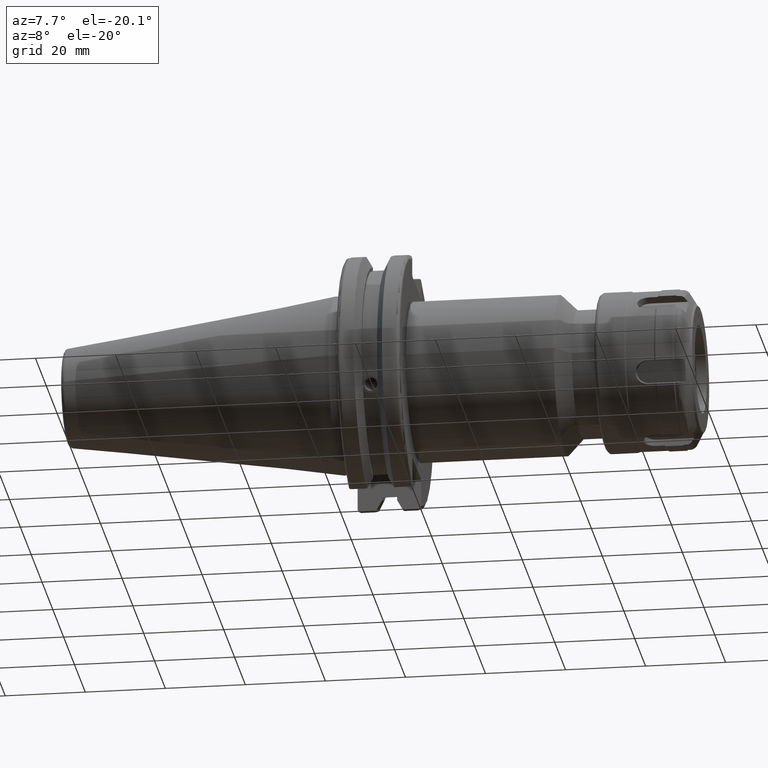
[diagram: clean part render]
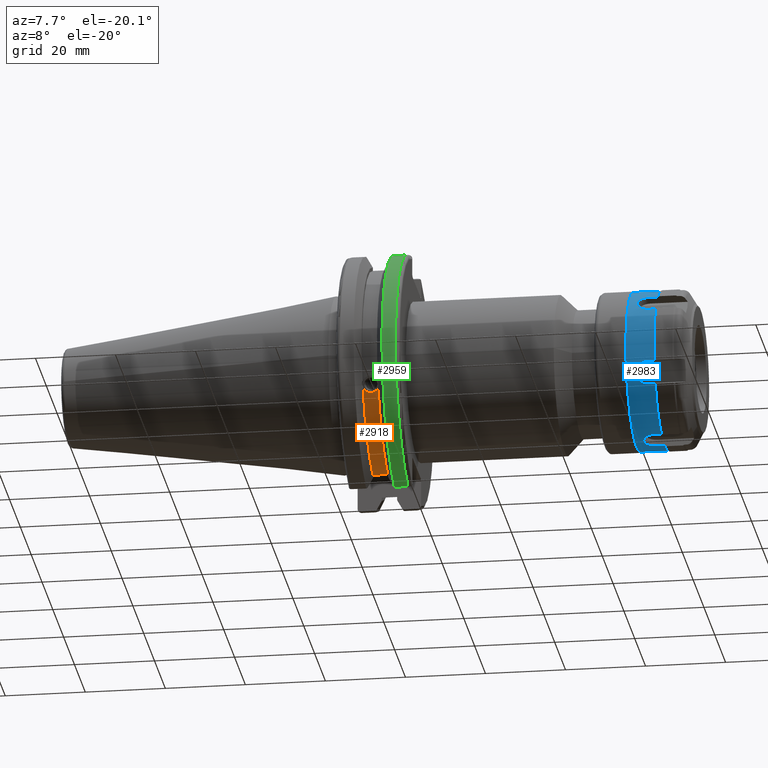
[diagram: same view with three faces highlighted in distinct colors, each labeled with its STEP entity id]
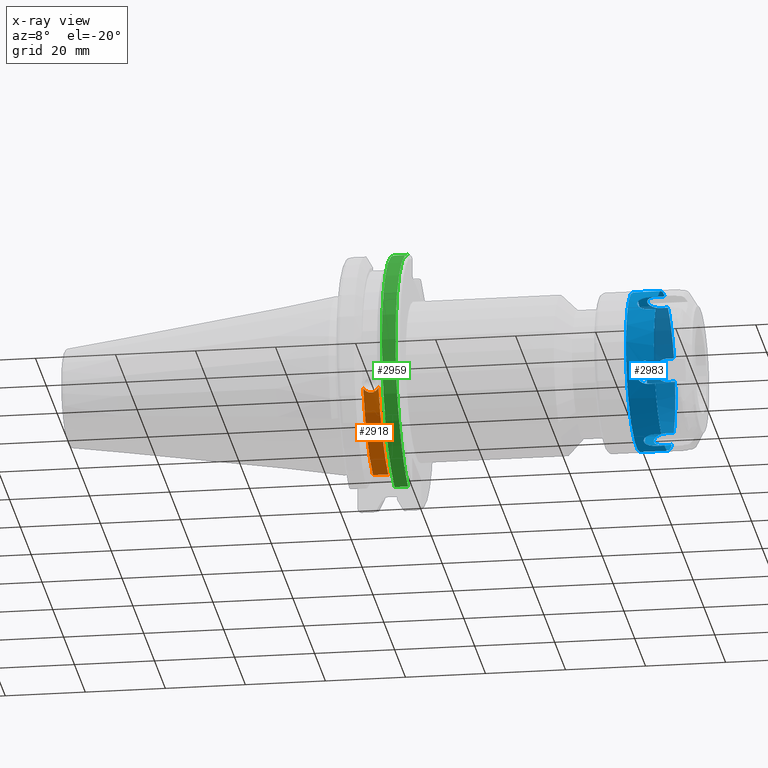
[diagram: x-ray of the same camera — body ghosted, the three highlighted faces saturated]
A machine part, auxiliary view with three faces highlighted in distinct colors.
The next image is the same camera in x-ray (body ghosted, the three faces saturated) — at least one of them is partly hidden behind the body in this view.
Their STEP definitions:

[orange] entity #2918 — the highlighted cylindrical surface (partial cylindrical patch) has radius 28.15 mm, axis along (1, 0, 0).
#396=B_SPLINE_CURVE_WITH_KNOTS('',3,(#4585,#4586,#4587,#4588,#4589,#4590,
#4591,#4592,#4593,#4594,#4595,#4596,#4597,#4598,#4599),.UNSPECIFIED.,.F.,
 .F.,(4,2,2,3,2,2,4),(-0.231446873660085,-0.158271583089134,-0.079135791544567,
0.,0.0791357915445672,0.158271583089134,0.231446873660466),
 .UNSPECIFIED.);
#449=CYLINDRICAL_SURFACE('',#3208,28.15);
#507=FACE_OUTER_BOUND('',#668,.T.);
#668=EDGE_LOOP('',(#2132,#2133,#2134,#2135));
#835=LINE('',#4658,#1025);
#1025=VECTOR('',#3637,10.);
#1215=CIRCLE('',#3207,28.15);
#1216=CIRCLE('',#3209,28.15);
#1358=VERTEX_POINT('',#4582);
#1359=VERTEX_POINT('',#4584);
#1372=VERTEX_POINT('',#4652);
#1373=VERTEX_POINT('',#4656);
#1647=EDGE_CURVE('',#1359,#1358,#396,.T.);
#1665=EDGE_CURVE('',#1359,#1372,#1215,.T.);
#1667=EDGE_CURVE('',#1358,#1373,#1216,.T.);
#1668=EDGE_CURVE('',#1373,#1372,#835,.T.);
#2132=ORIENTED_EDGE('',*,*,#1647,.T.);
#2133=ORIENTED_EDGE('',*,*,#1667,.T.);
#2134=ORIENTED_EDGE('',*,*,#1668,.T.);
#2135=ORIENTED_EDGE('',*,*,#1665,.F.);
#2918=ADVANCED_FACE('',(#507),#449,.T.);
#3207=AXIS2_PLACEMENT_3D('',#4653,#3630,#3631);
#3208=AXIS2_PLACEMENT_3D('',#4655,#3633,#3634);
#3209=AXIS2_PLACEMENT_3D('',#4657,#3635,#3636);
#3630=DIRECTION('center_axis',(1.,0.,0.));
#3631=DIRECTION('ref_axis',(0.,0.,-1.));
#3633=DIRECTION('center_axis',(1.,0.,0.));
#3634=DIRECTION('ref_axis',(0.,1.,0.));
#3635=DIRECTION('center_axis',(1.,0.,0.));
#3636=DIRECTION('ref_axis',(0.,0.,-1.));
#3637=DIRECTION('',(1.,0.,0.));
#4582=CARTESIAN_POINT('',(9.212,-26.1451788594704,-10.4332220529567));
#4584=CARTESIAN_POINT('',(13.042,-26.1451788594704,-10.4332220529567));
#4585=CARTESIAN_POINT('Ctrl Pts',(13.042,-26.1451788594704,-10.4332220529567));
#4586=CARTESIAN_POINT('Ctrl Pts',(12.9357694290343,-26.0576536126147,-10.6525563316815));
#4587=CARTESIAN_POINT('Ctrl Pts',(12.784279862294,-25.9751489313128,-10.8509873904882));
#4588=CARTESIAN_POINT('Ctrl Pts',(12.4255293734259,-25.8346412777187,-11.1816210830117));
#4589=CARTESIAN_POINT('Ctrl Pts',(12.1894549887012,-25.7695111693635,-11.3298867884858));
#4590=CARTESIAN_POINT('Ctrl Pts',(11.6720874573612,-25.6822868299377,-11.5262389251846));
#4591=CARTESIAN_POINT('Ctrl Pts',(11.3907859718152,-25.6603958057616,-11.5743935949859));
#4592=CARTESIAN_POINT('Ctrl Pts',(11.127,-25.6603958057616,-11.5743935949859));
#4593=CARTESIAN_POINT('Ctrl Pts',(10.8632140281848,-25.6603958057616,-11.5743935949859));
#4594=CARTESIAN_POINT('Ctrl Pts',(10.5819125426388,-25.6822868299377,-11.5262389251846));
#4595=CARTESIAN_POINT('Ctrl Pts',(10.0645450112988,-25.7695111693635,-11.3298867884858));
#4596=CARTESIAN_POINT('Ctrl Pts',(9.8284706265741,-25.8346412777187,-11.1816210830117));
#4597=CARTESIAN_POINT('Ctrl Pts',(9.46972013770509,-25.9751489313131,-10.8509873904873));
#4598=CARTESIAN_POINT('Ctrl Pts',(9.31823057097183,-26.0576536126096,-10.6525563316942));
#4599=CARTESIAN_POINT('Ctrl Pts',(9.212,-26.1451788594704,-10.4332220529567));
#4652=CARTESIAN_POINT('',(13.042,-8.19,-26.932255754021));
#4653=CARTESIAN_POINT('Origin',(13.042,0.,0.));
#4655=CARTESIAN_POINT('Origin',(11.127,0.,0.));
#4656=CARTESIAN_POINT('',(9.212,-8.19,-26.932255754021));
#4657=CARTESIAN_POINT('Origin',(9.212,0.,0.));
#4658=CARTESIAN_POINT('',(11.127,-8.19,-26.932255754021));

[blue] entity #2983 — the highlighted cylindrical surface (bore or boss wall) has radius 19.8 mm, axis along (-1, 0, 0).
#431=B_SPLINE_CURVE_WITH_KNOTS('',3,(#5446,#5447,#5448,#5449,#5450,#5451,
#5452,#5453,#5454,#5455),.UNSPECIFIED.,.F.,.F.,(4,2,2,2,4),(0.438672255739738,
0.548420928480743,0.658169601221749,0.767757056350612,0.877344511479476),
 .UNSPECIFIED.);
#432=B_SPLINE_CURVE_WITH_KNOTS('',3,(#5463,#5464,#5465,#5466,#5467,#5468,
#5469,#5470,#5471,#5472,#5473,#5474,#5475,#5476,#5477,#5478,#5479,#5480),
 .UNSPECIFIED.,.F.,.F.,(4,2,2,2,2,2,2,2,4),(-2.46420310850344E-8,0.109587439001204,
0.21917490264444,0.328923583912342,0.438672265180244,0.548420946448147,
0.658169627716049,0.767757091359283,0.877344555002517),.UNSPECIFIED.);
#433=B_SPLINE_CURVE_WITH_KNOTS('',3,(#5488,#5489,#5490,#5491,#5492,#5493,
#5494,#5495,#5496,#5497,#5498,#5499,#5500,#5501,#5502,#5503,#5504,#5505),
 .UNSPECIFIED.,.F.,.F.,(4,2,2,2,2,2,2,2,4),(-2.46420308630507E-8,0.109587439001203,
0.219174902644436,0.328923583912339,0.438672265180242,0.548420946448144,
0.658169627716046,0.767757091359282,0.877344555002517),.UNSPECIFIED.);
#434=B_SPLINE_CURVE_WITH_KNOTS('',3,(#5513,#5514,#5515,#5516,#5517,#5518,
#5519,#5520,#5521,#5522,#5523,#5524,#5525,#5526,#5527,#5528,#5529,#5530),
 .UNSPECIFIED.,.F.,.F.,(4,2,2,2,2,2,2,2,4),(-0.877344538842361,-0.767757078464627,
-0.658169618086892,-0.548420940089294,-0.438672262091695,-0.328923584094097,
-0.219174906096499,-0.109587445718764,1.46589702598732E-8),
 .UNSPECIFIED.);
#435=B_SPLINE_CURVE_WITH_KNOTS('',3,(#5538,#5539,#5540,#5541,#5542,#5543,
#5544,#5545,#5546,#5547,#5548,#5549,#5550,#5551,#5552,#5553,#5554,#5555),
 .UNSPECIFIED.,.F.,.F.,(4,2,2,2,2,2,2,2,4),(-2.46420304189006E-8,0.109587439001205,
0.21917490264444,0.328923583912343,0.438672265180245,0.548420946448148,
0.65816962771605,0.767757091359284,0.877344555002518),.UNSPECIFIED.);
#436=B_SPLINE_CURVE_WITH_KNOTS('',3,(#5562,#5563,#5564,#5565,#5566,#5567,
#5568,#5569,#5570,#5571,#5572,#5573,#5574,#5575,#5576,#5577,#5578,#5579),
 .UNSPECIFIED.,.F.,.F.,(4,2,2,2,2,2,2,2,4),(-2.46420301969169E-8,0.109587439001203,
0.219174902644437,0.32892358391234,0.438672265180242,0.548420946448145,
0.658169627716047,0.767757091359282,0.877344555002518),.UNSPECIFIED.);
#437=B_SPLINE_CURVE_WITH_KNOTS('',3,(#5584,#5585,#5586,#5587,#5588,#5589,
#5590,#5591,#5592,#5593),.UNSPECIFIED.,.F.,.F.,(4,2,2,2,4),(0.,0.109587455128863,
0.219174910257727,0.328923582998732,0.438672255739738),.UNSPECIFIED.);
#466=CYLINDRICAL_SURFACE('',#3350,19.8);
#572=FACE_OUTER_BOUND('',#742,.T.);
#742=EDGE_LOOP('',(#2510,#2511,#2512,#2513,#2514,#2515,#2516,#2517,#2518,
#2519,#2520,#2521,#2522,#2523,#2524,#2525,#2526,#2527,#2528,#2529,#2530,
#2531,#2532,#2533,#2534,#2535,#2536,#2537));
#911=LINE('',#5427,#1101);
#918=LINE('',#5444,#1108);
#919=LINE('',#5457,#1109);
#920=LINE('',#5461,#1110);
#921=LINE('',#5482,#1111);
#922=LINE('',#5486,#1112);
#923=LINE('',#5507,#1113);
#924=LINE('',#5511,#1114);
#925=LINE('',#5532,#1115);
#926=LINE('',#5536,#1116);
#927=LINE('',#5557,#1117);
#928=LINE('',#5561,#1118);
#929=LINE('',#5583,#1119);
#1101=VECTOR('',#3991,1.849999564767);
#1108=VECTOR('',#4004,19.8);
#1109=VECTOR('',#4005,1.849999999999);
#1110=VECTOR('',#4008,1.849999753578);
#1111=VECTOR('',#4009,1.849999564767);
#1112=VECTOR('',#4012,1.849999753578);
#1113=VECTOR('',#4013,1.849999564767);
#1114=VECTOR('',#4016,1.84999985341);
#1115=VECTOR('',#4017,1.849999726372);
#1116=VECTOR('',#4020,1.849999753578);
#1117=VECTOR('',#4021,1.849999564767);
#1118=VECTOR('',#4024,1.849999753578);
#1119=VECTOR('',#4027,1.849999999999);
#1274=CIRCLE('',#3351,19.8);
#1275=CIRCLE('',#3352,19.8);
#1276=CIRCLE('',#3353,19.8);
#1277=CIRCLE('',#3354,19.8);
#1278=CIRCLE('',#3355,19.8);
#1279=CIRCLE('',#3356,19.8);
#1280=CIRCLE('',#3357,19.8);
#1502=VERTEX_POINT('',#5425);
#1503=VERTEX_POINT('',#5426);
#1509=VERTEX_POINT('',#5441);
#1510=VERTEX_POINT('',#5443);
#1511=VERTEX_POINT('',#5445);
#1512=VERTEX_POINT('',#5456);
#1513=VERTEX_POINT('',#5458);
#1514=VERTEX_POINT('',#5460);
#1515=VERTEX_POINT('',#5462);
#1516=VERTEX_POINT('',#5481);
#1517=VERTEX_POINT('',#5483);
#1518=VERTEX_POINT('',#5485);
#1519=VERTEX_POINT('',#5487);
#1520=VERTEX_POINT('',#5506);
#1521=VERTEX_POINT('',#5508);
#1522=VERTEX_POINT('',#5510);
#1523=VERTEX_POINT('',#5512);
#1524=VERTEX_POINT('',#5531);
#1525=VERTEX_POINT('',#5533);
#1526=VERTEX_POINT('',#5535);
#1527=VERTEX_POINT('',#5537);
#1528=VERTEX_POINT('',#5556);
#1529=VERTEX_POINT('',#5558);
#1530=VERTEX_POINT('',#5560);
#1531=VERTEX_POINT('',#5580);
#1532=VERTEX_POINT('',#5582);
#1856=EDGE_CURVE('',#1502,#1503,#911,.T.);
#1864=EDGE_CURVE('',#1509,#1509,#1274,.T.);
#1865=EDGE_CURVE('',#1509,#1510,#918,.T.);
#1866=EDGE_CURVE('',#1510,#1511,#431,.T.);
#1867=EDGE_CURVE('',#1512,#1511,#919,.T.);
#1868=EDGE_CURVE('',#1512,#1513,#1275,.T.);
#1869=EDGE_CURVE('',#1513,#1514,#920,.T.);
#1870=EDGE_CURVE('',#1514,#1515,#432,.T.);
#1871=EDGE_CURVE('',#1516,#1515,#921,.T.);
#1872=EDGE_CURVE('',#1516,#1517,#1276,.T.);
#1873=EDGE_CURVE('',#1517,#1518,#922,.T.);
#1874=EDGE_CURVE('',#1518,#1519,#433,.T.);
#1875=EDGE_CURVE('',#1520,#1519,#923,.T.);
#1876=EDGE_CURVE('',#1520,#1521,#1277,.T.);
#1877=EDGE_CURVE('',#1521,#1522,#924,.T.);
#1878=EDGE_CURVE('',#1522,#1523,#434,.F.);
#1879=EDGE_CURVE('',#1524,#1523,#925,.T.);
#1880=EDGE_CURVE('',#1525,#1524,#1278,.T.);
#1881=EDGE_CURVE('',#1525,#1526,#926,.T.);
#1882=EDGE_CURVE('',#1526,#1527,#435,.T.);
#1883=EDGE_CURVE('',#1528,#1527,#927,.T.);
#1884=EDGE_CURVE('',#1529,#1528,#1279,.T.);
#1885=EDGE_CURVE('',#1529,#1530,#928,.T.);
#1886=EDGE_CURVE('',#1530,#1503,#436,.T.);
#1887=EDGE_CURVE('',#1531,#1502,#1280,.T.);
#1888=EDGE_CURVE('',#1531,#1532,#929,.T.);
#1889=EDGE_CURVE('',#1532,#1510,#437,.T.);
#2510=ORIENTED_EDGE('',*,*,#1864,.T.);
#2511=ORIENTED_EDGE('',*,*,#1865,.T.);
#2512=ORIENTED_EDGE('',*,*,#1866,.T.);
#2513=ORIENTED_EDGE('',*,*,#1867,.F.);
#2514=ORIENTED_EDGE('',*,*,#1868,.T.);
#2515=ORIENTED_EDGE('',*,*,#1869,.T.);
#2516=ORIENTED_EDGE('',*,*,#1870,.T.);
#2517=ORIENTED_EDGE('',*,*,#1871,.F.);
#2518=ORIENTED_EDGE('',*,*,#1872,.T.);
#2519=ORIENTED_EDGE('',*,*,#1873,.T.);
#2520=ORIENTED_EDGE('',*,*,#1874,.T.);
#2521=ORIENTED_EDGE('',*,*,#1875,.F.);
#2522=ORIENTED_EDGE('',*,*,#1876,.T.);
#2523=ORIENTED_EDGE('',*,*,#1877,.T.);
#2524=ORIENTED_EDGE('',*,*,#1878,.T.);
#2525=ORIENTED_EDGE('',*,*,#1879,.F.);
#2526=ORIENTED_EDGE('',*,*,#1880,.F.);
#2527=ORIENTED_EDGE('',*,*,#1881,.T.);
#2528=ORIENTED_EDGE('',*,*,#1882,.T.);
#2529=ORIENTED_EDGE('',*,*,#1883,.F.);
#2530=ORIENTED_EDGE('',*,*,#1884,.F.);
#2531=ORIENTED_EDGE('',*,*,#1885,.T.);
#2532=ORIENTED_EDGE('',*,*,#1886,.T.);
#2533=ORIENTED_EDGE('',*,*,#1856,.F.);
#2534=ORIENTED_EDGE('',*,*,#1887,.F.);
#2535=ORIENTED_EDGE('',*,*,#1888,.T.);
#2536=ORIENTED_EDGE('',*,*,#1889,.T.);
#2537=ORIENTED_EDGE('',*,*,#1865,.F.);
#2983=ADVANCED_FACE('',(#572),#466,.T.);
#3350=AXIS2_PLACEMENT_3D('',#5440,#4000,#4001);
#3351=AXIS2_PLACEMENT_3D('',#5442,#4002,#4003);
#3352=AXIS2_PLACEMENT_3D('',#5459,#4006,#4007);
#3353=AXIS2_PLACEMENT_3D('',#5484,#4010,#4011);
#3354=AXIS2_PLACEMENT_3D('',#5509,#4014,#4015);
#3355=AXIS2_PLACEMENT_3D('',#5534,#4018,#4019);
#3356=AXIS2_PLACEMENT_3D('',#5559,#4022,#4023);
#3357=AXIS2_PLACEMENT_3D('',#5581,#4025,#4026);
#3991=DIRECTION('',(1.,2.196665468829E-9,-3.137164059966E-9));
#4000=DIRECTION('center_axis',(1.,0.,0.));
#4001=DIRECTION('ref_axis',(0.,-1.,0.));
#4002=DIRECTION('center_axis',(-1.,0.,0.));
#4003=DIRECTION('ref_axis',(0.,1.,0.));
#4004=DIRECTION('',(-1.,0.,0.));
#4005=DIRECTION('',(1.,0.,0.));
#4006=DIRECTION('center_axis',(1.,0.,0.));
#4007=DIRECTION('ref_axis',(0.,0.989234003049567,0.146342363007195));
#4008=DIRECTION('',(1.,1.24368616069E-9,1.776170798568E-9));
#4009=DIRECTION('',(1.,1.618530795576E-9,3.470950230352E-9));
#4010=DIRECTION('center_axis',(1.,0.,0.));
#4011=DIRECTION('ref_axis',(0.,0.3678807975107,0.929872958431899));
#4012=DIRECTION('',(1.,-9.163640437412E-10,1.965148306052E-9));
#4013=DIRECTION('',(1.,-2.196667389215E-9,3.137163099773E-9));
#4014=DIRECTION('center_axis',(1.,0.,0.));
#4015=DIRECTION('ref_axis',(0.,-0.621353205538823,0.783530595424729));
#4016=DIRECTION('',(1.,-1.20135694703E-9,1.051048820816E-10));
#4017=DIRECTION('',(1.,-2.253960955125E-9,-1.971965225354E-10));
#4018=DIRECTION('center_axis',(-1.,0.,0.));
#4019=DIRECTION('ref_axis',(0.,-0.621353205538823,-0.783530595424729));
#4020=DIRECTION('',(1.,-1.243683280111E-9,-1.776167917989E-9));
#4021=DIRECTION('',(1.,-1.618529355286E-9,-3.470952150738E-9));
#4022=DIRECTION('center_axis',(-1.,0.,0.));
#4023=DIRECTION('ref_axis',(0.,0.3678807975107,-0.929872958431899));
#4024=DIRECTION('',(1.,9.163626034516E-10,-1.965146385665E-9));
#4025=DIRECTION('center_axis',(-1.,0.,0.));
#4026=DIRECTION('ref_axis',(0.,0.989234003049567,-0.146342363007195));
#4027=DIRECTION('',(1.,0.,0.));
#5425=CARTESIAN_POINT('',(9.000000000001,12.30279346967,-15.51390578941));
#5426=CARTESIAN_POINT('',(10.8499995647688,12.302793471566,-15.5139057921176));
#5427=CARTESIAN_POINT('',(9.000000000001,12.30279346967,-15.51390578941));
#5440=CARTESIAN_POINT('Origin',(-1.2,0.,0.));
#5441=CARTESIAN_POINT('',(16.,19.8,2.42480066231176E-15));
#5442=CARTESIAN_POINT('Origin',(16.,0.,0.));
#5443=CARTESIAN_POINT('',(13.7662284606996,19.8,1.28178927019495E-15));
#5444=CARTESIAN_POINT('',(-1.2,19.8,2.42480066231176E-15));
#5445=CARTESIAN_POINT('',(10.85,19.58683326038,2.897578787542));
#5446=CARTESIAN_POINT('Ctrl Pts',(13.7662284606996,19.8,2.77555756156289E-16));
#5447=CARTESIAN_POINT('Ctrl Pts',(13.7662284606996,19.8,0.365828909136686));
#5448=CARTESIAN_POINT('Ctrl Pts',(13.6922409651119,19.7888260840001,0.755406408458168));
#5449=CARTESIAN_POINT('Ctrl Pts',(13.3927967707882,19.7485606217989,1.47058830764169));
#5450=CARTESIAN_POINT('Ctrl Pts',(13.167382104288,19.7200430935425,1.79624250738127));
#5451=CARTESIAN_POINT('Ctrl Pts',(12.6491339359066,19.6665735397372,2.30917224958792));
#5452=CARTESIAN_POINT('Ctrl Pts',(12.3217476724158,19.6381254630146,2.53102182956664));
#5453=CARTESIAN_POINT('Ctrl Pts',(11.6048458124816,19.597961771536,2.82523232074532));
#5454=CARTESIAN_POINT('Ctrl Pts',(11.2152915170962,19.5868332603815,2.89757878754222));
#5455=CARTESIAN_POINT('Ctrl Pts',(10.85,19.5868332603815,2.89757878754222));
#5456=CARTESIAN_POINT('',(9.000000000001,19.58683326038,2.897578787542));
#5457=CARTESIAN_POINT('',(9.000000000001,19.58683326038,2.897578787542));
#5458=CARTESIAN_POINT('',(9.000000000001,12.30279346967,15.51390578941));
#5459=CARTESIAN_POINT('Origin',(9.000000000001,0.,0.));
#5460=CARTESIAN_POINT('',(10.8499997535797,12.3027934707794,15.5139057909941));
#5461=CARTESIAN_POINT('',(9.000000000001,12.30279346967,15.51390578941));
#5462=CARTESIAN_POINT('',(10.8499995647688,7.2840397921096,18.4114845799472));
#5463=CARTESIAN_POINT('Ctrl Pts',(10.8499997535797,12.3027934696677,15.5139057894104));
#5464=CARTESIAN_POINT('Ctrl Pts',(11.2152912706759,12.3027934939591,15.5139057701469));
#5465=CARTESIAN_POINT('Ctrl Pts',(11.6048458124816,12.2457038471248,15.559716596175));
#5466=CARTESIAN_POINT('Ctrl Pts',(12.3217476724157,12.0109919334435,15.7416046188945));
#5467=CARTESIAN_POINT('Ctrl Pts',(12.6491339359065,11.8330885997243,15.8771661660144));
#5468=CARTESIAN_POINT('Ctrl Pts',(13.1673821042878,11.4156131895194,16.1799370290421));
#5469=CARTESIAN_POINT('Ctrl Pts',(13.392796770788,11.1478471438241,16.367461032835));
#5470=CARTESIAN_POINT('Ctrl Pts',(13.6922409651117,10.5486141819049,16.7599228955881));
#5471=CARTESIAN_POINT('Ctrl Pts',(13.7662284606994,10.2168171287497,16.9643885403644));
#5472=CARTESIAN_POINT('Ctrl Pts',(13.7662284606994,9.58318287124747,17.330217449501));
#5473=CARTESIAN_POINT('Ctrl Pts',(13.6922409651116,9.24021190209232,17.5153293040461));
#5474=CARTESIAN_POINT('Ctrl Pts',(13.392796770788,8.60071347797203,17.8380493404764));
#5475=CARTESIAN_POINT('Ctrl Pts',(13.1673821042878,8.30442990402025,17.9761795364229));
#5476=CARTESIAN_POINT('Ctrl Pts',(12.6491339359064,7.83348494001009,18.1863384156018));
#5477=CARTESIAN_POINT('Ctrl Pts',(12.3217476724156,7.62713352956832,18.2726264484606));
#5478=CARTESIAN_POINT('Ctrl Pts',(11.6048458124816,7.35225792440838,18.3849489169196));
#5479=CARTESIAN_POINT('Ctrl Pts',(11.2152915170962,7.28403979071096,18.4114845769519));
#5480=CARTESIAN_POINT('Ctrl Pts',(10.85,7.28403979071096,18.4114845769519));
#5481=CARTESIAN_POINT('',(9.000000000001,7.284039790713,18.41148457695));
#5482=CARTESIAN_POINT('',(9.000000000001,7.284039790713,18.41148457695));
#5483=CARTESIAN_POINT('',(9.000000000001,-7.284039790713,18.41148457695));
#5484=CARTESIAN_POINT('Origin',(9.000000000001,0.,0.));
#5485=CARTESIAN_POINT('',(10.8499997535797,-7.28403979152998,18.4114845787042));
#5486=CARTESIAN_POINT('',(9.000000000001,-7.284039790713,18.41148457695));
#5487=CARTESIAN_POINT('',(10.8499995647688,-12.302793471566,15.5139057921176));
#5488=CARTESIAN_POINT('Ctrl Pts',(10.8499997535797,-7.28403979071097,18.4114845769519));
#5489=CARTESIAN_POINT('Ctrl Pts',(11.2152912706759,-7.28403976188256,18.4114845883572));
#5490=CARTESIAN_POINT('Ctrl Pts',(11.6048458124816,-7.35225792440838,18.3849489169196));
#5491=CARTESIAN_POINT('Ctrl Pts',(12.3217476724156,-7.62713352956832,18.2726264484606));
#5492=CARTESIAN_POINT('Ctrl Pts',(12.6491339359064,-7.83348494001009,18.1863384156018));
#5493=CARTESIAN_POINT('Ctrl Pts',(13.1673821042878,-8.30442990402025,17.9761795364229));
#5494=CARTESIAN_POINT('Ctrl Pts',(13.392796770788,-8.60071347797203,17.8380493404764));
#5495=CARTESIAN_POINT('Ctrl Pts',(13.6922409651116,-9.24021190209232,17.5153293040461));
#5496=CARTESIAN_POINT('Ctrl Pts',(13.7662284606994,-9.58318287124747,17.330217449501));
#5497=CARTESIAN_POINT('Ctrl Pts',(13.7662284606994,-10.2168171287497,16.9643885403644));
#5498=CARTESIAN_POINT('Ctrl Pts',(13.6922409651117,-10.5486141819049,16.7599228955881));
#5499=CARTESIAN_POINT('Ctrl Pts',(13.392796770788,-11.1478471438241,16.367461032835));
#5500=CARTESIAN_POINT('Ctrl Pts',(13.1673821042878,-11.4156131895194,16.1799370290421));
#5501=CARTESIAN_POINT('Ctrl Pts',(12.6491339359065,-11.8330885997243,15.8771661660144));
#5502=CARTESIAN_POINT('Ctrl Pts',(12.3217476724157,-12.0109919334435,15.7416046188945));
#5503=CARTESIAN_POINT('Ctrl Pts',(11.6048458124816,-12.2457038471248,15.559716596175));
#5504=CARTESIAN_POINT('Ctrl Pts',(11.2152915170962,-12.3027934696677,15.5139057894104));
#5505=CARTESIAN_POINT('Ctrl Pts',(10.85,-12.3027934696677,15.5139057894104));
#5506=CARTESIAN_POINT('',(9.000000000001,-12.30279346967,15.51390578941));
#5507=CARTESIAN_POINT('',(9.000000000001,-12.30279346967,15.51390578941));
#5508=CARTESIAN_POINT('',(9.000000000001,-19.58683326038,2.897578787542));
#5509=CARTESIAN_POINT('Origin',(9.000000000001,0.,0.));
#5510=CARTESIAN_POINT('',(10.8499998534103,-19.5868332612079,2.8975787875897));
#5511=CARTESIAN_POINT('',(9.000000000001,-19.58683326038,2.897578787542));
#5512=CARTESIAN_POINT('',(10.8499997263711,-19.5868332617272,-2.89757878761964));
#5513=CARTESIAN_POINT('Ctrl Pts',(10.85,-19.5868332603815,-2.89757878754222));
#5514=CARTESIAN_POINT('Ctrl Pts',(11.2152915170962,-19.5868332553435,-2.89757882159726));
#5515=CARTESIAN_POINT('Ctrl Pts',(11.6048458124816,-19.597961771536,-2.82523232074532));
#5516=CARTESIAN_POINT('Ctrl Pts',(12.3217476724158,-19.6381254630146,-2.53102182956664));
#5517=CARTESIAN_POINT('Ctrl Pts',(12.6491339359066,-19.6665735397372,-2.30917224958792));
#5518=CARTESIAN_POINT('Ctrl Pts',(13.167382104288,-19.7200430935425,-1.79624250738127));
#5519=CARTESIAN_POINT('Ctrl Pts',(13.3927967707882,-19.7485606217989,-1.47058830764169));
#5520=CARTESIAN_POINT('Ctrl Pts',(13.6922409651119,-19.7888260840001,-0.755406408458168));
#5521=CARTESIAN_POINT('Ctrl Pts',(13.7662284606996,-19.8,-0.365828909136685));
#5522=CARTESIAN_POINT('Ctrl Pts',(13.7662284606996,-19.8,0.365828909136685));
#5523=CARTESIAN_POINT('Ctrl Pts',(13.6922409651119,-19.7888260840001,0.755406408458167));
#5524=CARTESIAN_POINT('Ctrl Pts',(13.3927967707882,-19.7485606217989,1.47058830764169));
#5525=CARTESIAN_POINT('Ctrl Pts',(13.167382104288,-19.7200430935425,1.79624250738127));
#5526=CARTESIAN_POINT('Ctrl Pts',(12.6491339359066,-19.6665735397372,2.30917224958792));
#5527=CARTESIAN_POINT('Ctrl Pts',(12.3217476724158,-19.6381254630146,2.53102182956664));
#5528=CARTESIAN_POINT('Ctrl Pts',(11.6048458124816,-19.597961771536,2.82523232074532));
#5529=CARTESIAN_POINT('Ctrl Pts',(11.2152915170962,-19.5868332603815,2.89757878754222));
#5530=CARTESIAN_POINT('Ctrl Pts',(10.85,-19.5868332603815,2.89757878754222));
#5531=CARTESIAN_POINT('',(9.000000000001,-19.58683326038,-2.897578787542));
#5532=CARTESIAN_POINT('',(9.000000000001,-19.58683326038,-2.897578787542));
#5533=CARTESIAN_POINT('',(9.000000000001,-12.30279346967,-15.51390578941));
#5534=CARTESIAN_POINT('Origin',(9.000000000001,0.,0.));
#5535=CARTESIAN_POINT('',(10.8499997535797,-12.3027934707794,-15.5139057909941));
#5536=CARTESIAN_POINT('',(9.000000000001,-12.30279346967,-15.51390578941));
#5537=CARTESIAN_POINT('',(10.8499995647688,-7.2840397921096,-18.4114845799472));
#5538=CARTESIAN_POINT('Ctrl Pts',(10.8499997535797,-12.3027934696677,-15.5139057894104));
#5539=CARTESIAN_POINT('Ctrl Pts',(11.2152912706759,-12.3027934939591,-15.5139057701469));
#5540=CARTESIAN_POINT('Ctrl Pts',(11.6048458124816,-12.2457038471248,-15.559716596175));
#5541=CARTESIAN_POINT('Ctrl Pts',(12.3217476724157,-12.0109919334435,-15.7416046188945));
#5542=CARTESIAN_POINT('Ctrl Pts',(12.6491339359065,-11.8330885997243,-15.8771661660144));
#5543=CARTESIAN_POINT('Ctrl Pts',(13.1673821042878,-11.4156131895194,-16.1799370290421));
#5544=CARTESIAN_POINT('Ctrl Pts',(13.392796770788,-11.1478471438241,-16.367461032835));
#5545=CARTESIAN_POINT('Ctrl Pts',(13.6922409651117,-10.5486141819049,-16.7599228955881));
#5546=CARTESIAN_POINT('Ctrl Pts',(13.7662284606994,-10.2168171287497,-16.9643885403644));
#5547=CARTESIAN_POINT('Ctrl Pts',(13.7662284606994,-9.58318287124747,-17.330217449501));
#5548=CARTESIAN_POINT('Ctrl Pts',(13.6922409651116,-9.24021190209232,-17.5153293040461));
#5549=CARTESIAN_POINT('Ctrl Pts',(13.392796770788,-8.60071347797203,-17.8380493404764));
#5550=CARTESIAN_POINT('Ctrl Pts',(13.1673821042878,-8.30442990402025,-17.9761795364229));
#5551=CARTESIAN_POINT('Ctrl Pts',(12.6491339359064,-7.83348494001009,-18.1863384156018));
#5552=CARTESIAN_POINT('Ctrl Pts',(12.3217476724156,-7.62713352956832,-18.2726264484606));
#5553=CARTESIAN_POINT('Ctrl Pts',(11.6048458124816,-7.35225792440838,-18.3849489169196));
#5554=CARTESIAN_POINT('Ctrl Pts',(11.2152915170962,-7.28403979071096,-18.4114845769519));
#5555=CARTESIAN_POINT('Ctrl Pts',(10.85,-7.28403979071096,-18.4114845769519));
#5556=CARTESIAN_POINT('',(9.000000000001,-7.284039790713,-18.41148457695));
#5557=CARTESIAN_POINT('',(9.000000000001,-7.284039790713,-18.41148457695));
#5558=CARTESIAN_POINT('',(9.000000000001,7.284039790713,-18.41148457695));
#5559=CARTESIAN_POINT('Origin',(9.000000000001,0.,0.));
#5560=CARTESIAN_POINT('',(10.8499997535797,7.28403979152998,-18.4114845787042));
#5561=CARTESIAN_POINT('',(9.000000000001,7.284039790713,-18.41148457695));
#5562=CARTESIAN_POINT('Ctrl Pts',(10.8499997535797,7.28403979071097,-18.4114845769519));
#5563=CARTESIAN_POINT('Ctrl Pts',(11.2152912706759,7.28403976188257,-18.4114845883572));
#5564=CARTESIAN_POINT('Ctrl Pts',(11.6048458124816,7.35225792440838,-18.3849489169196));
#5565=CARTESIAN_POINT('Ctrl Pts',(12.3217476724156,7.62713352956832,-18.2726264484606));
#5566=CARTESIAN_POINT('Ctrl Pts',(12.6491339359064,7.83348494001009,-18.1863384156018));
#5567=CARTESIAN_POINT('Ctrl Pts',(13.1673821042878,8.30442990402025,-17.9761795364229));
#5568=CARTESIAN_POINT('Ctrl Pts',(13.392796770788,8.60071347797203,-17.8380493404764));
#5569=CARTESIAN_POINT('Ctrl Pts',(13.6922409651116,9.24021190209232,-17.5153293040461));
#5570=CARTESIAN_POINT('Ctrl Pts',(13.7662284606994,9.58318287124747,-17.330217449501));
#5571=CARTESIAN_POINT('Ctrl Pts',(13.7662284606994,10.2168171287497,-16.9643885403644));
#5572=CARTESIAN_POINT('Ctrl Pts',(13.6922409651117,10.5486141819049,-16.7599228955881));
#5573=CARTESIAN_POINT('Ctrl Pts',(13.392796770788,11.1478471438241,-16.367461032835));
#5574=CARTESIAN_POINT('Ctrl Pts',(13.1673821042878,11.4156131895194,-16.1799370290421));
#5575=CARTESIAN_POINT('Ctrl Pts',(12.6491339359065,11.8330885997243,-15.8771661660144));
#5576=CARTESIAN_POINT('Ctrl Pts',(12.3217476724157,12.0109919334435,-15.7416046188945));
#5577=CARTESIAN_POINT('Ctrl Pts',(11.6048458124816,12.2457038471248,-15.559716596175));
#5578=CARTESIAN_POINT('Ctrl Pts',(11.2152915170962,12.3027934696677,-15.5139057894104));
#5579=CARTESIAN_POINT('Ctrl Pts',(10.85,12.3027934696677,-15.5139057894104));
#5580=CARTESIAN_POINT('',(9.000000000001,19.58683326038,-2.897578787542));
#5581=CARTESIAN_POINT('Origin',(9.000000000001,0.,0.));
#5582=CARTESIAN_POINT('',(10.85,19.58683326038,-2.897578787542));
#5583=CARTESIAN_POINT('',(9.000000000001,19.58683326038,-2.897578787542));
#5584=CARTESIAN_POINT('Ctrl Pts',(10.85,19.5868332603815,-2.89757878754222));
#5585=CARTESIAN_POINT('Ctrl Pts',(11.2152915170962,19.5868332603815,-2.89757878754222));
#5586=CARTESIAN_POINT('Ctrl Pts',(11.6048458124816,19.597961771536,-2.82523232074532));
#5587=CARTESIAN_POINT('Ctrl Pts',(12.3217476724158,19.6381254630146,-2.53102182956664));
#5588=CARTESIAN_POINT('Ctrl Pts',(12.6491339359066,19.6665735397372,-2.30917224958792));
#5589=CARTESIAN_POINT('Ctrl Pts',(13.167382104288,19.7200430935425,-1.79624250738127));
#5590=CARTESIAN_POINT('Ctrl Pts',(13.3927967707882,19.7485606217989,-1.47058830764169));
#5591=CARTESIAN_POINT('Ctrl Pts',(13.6922409651119,19.7888260840001,-0.755406408458167));
#5592=CARTESIAN_POINT('Ctrl Pts',(13.7662284606996,19.8,-0.365828909136685));
#5593=CARTESIAN_POINT('Ctrl Pts',(13.7662284606996,19.8,1.38777878078145E-16));

[green] entity #2959 — the highlighted cylindrical surface (partial cylindrical patch) has radius 31.75 mm, axis along (1, 0, 0).
#459=CYLINDRICAL_SURFACE('',#3291,31.75);
#548=FACE_OUTER_BOUND('',#716,.T.);
#716=EDGE_LOOP('',(#2379,#2380,#2381,#2382));
#899=LINE('',#5101,#1089);
#900=LINE('',#5103,#1090);
#1089=VECTOR('',#3863,10.);
#1090=VECTOR('',#3866,10.);
#1213=CIRCLE('',#3204,31.75);
#1239=CIRCLE('',#3263,31.75);
#1368=VERTEX_POINT('',#4636);
#1369=VERTEX_POINT('',#4640);
#1445=VERTEX_POINT('',#4946);
#1446=VERTEX_POINT('',#4955);
#1661=EDGE_CURVE('',#1369,#1368,#1213,.T.);
#1761=EDGE_CURVE('',#1445,#1446,#1239,.T.);
#1805=EDGE_CURVE('',#1446,#1368,#899,.T.);
#1806=EDGE_CURVE('',#1369,#1445,#900,.T.);
#2379=ORIENTED_EDGE('',*,*,#1761,.F.);
#2380=ORIENTED_EDGE('',*,*,#1806,.F.);
#2381=ORIENTED_EDGE('',*,*,#1661,.T.);
#2382=ORIENTED_EDGE('',*,*,#1805,.F.);
#2959=ADVANCED_FACE('',(#548),#459,.T.);
#3204=AXIS2_PLACEMENT_3D('',#4641,#3624,#3625);
#3263=AXIS2_PLACEMENT_3D('',#4956,#3787,#3788);
#3291=AXIS2_PLACEMENT_3D('',#5102,#3864,#3865);
#3624=DIRECTION('center_axis',(1.,0.,0.));
#3625=DIRECTION('ref_axis',(0.,0.,-1.));
#3787=DIRECTION('center_axis',(1.,0.,0.));
#3788=DIRECTION('ref_axis',(0.,-1.,1.60812264967664E-16));
#3863=DIRECTION('',(-1.,0.,0.));
#3864=DIRECTION('center_axis',(1.,0.,0.));
#3865=DIRECTION('ref_axis',(0.,-1.,1.22464679914735E-16));
#3866=DIRECTION('',(1.,0.,0.));
#4636=CARTESIAN_POINT('',(14.6531667690756,-8.67204822802685,-30.5427254764662));
#4640=CARTESIAN_POINT('',(14.6531667690756,-8.67204822802685,30.5427254764662));
#4641=CARTESIAN_POINT('Origin',(14.6531667690756,0.,0.));
#4946=CARTESIAN_POINT('',(18.05,-8.67204822802685,30.5427254764662));
#4955=CARTESIAN_POINT('',(18.05,-8.67204822802685,-30.5427254764662));
#4956=CARTESIAN_POINT('Origin',(18.05,0.,0.));
#5101=CARTESIAN_POINT('',(16.8515833845378,-8.67204822802685,-30.5427254764662));
#5102=CARTESIAN_POINT('Origin',(16.8515833845378,0.,0.));
#5103=CARTESIAN_POINT('',(16.8515833845378,-8.67204822802685,30.5427254764662));